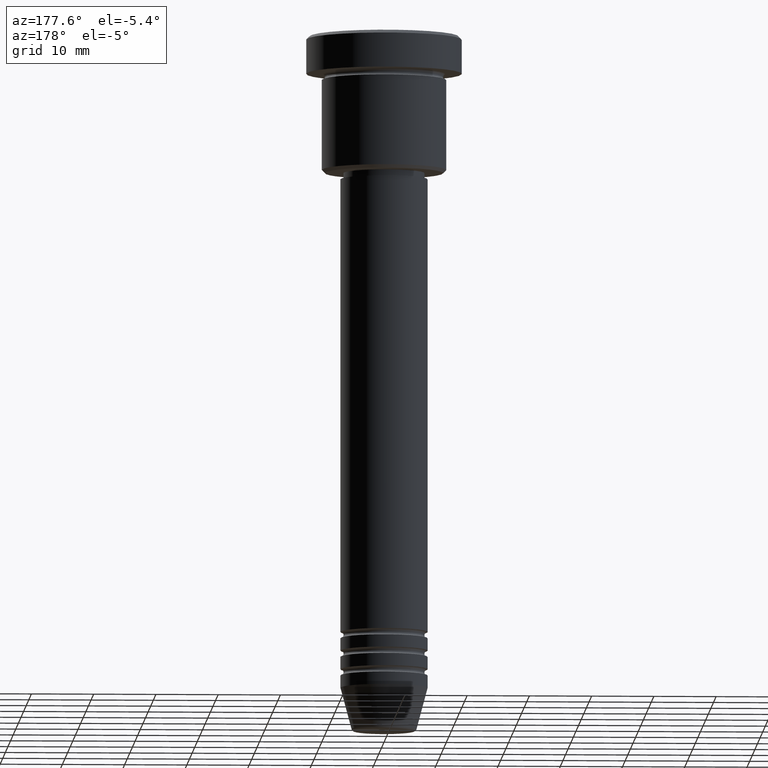
[diagram: clean part render]
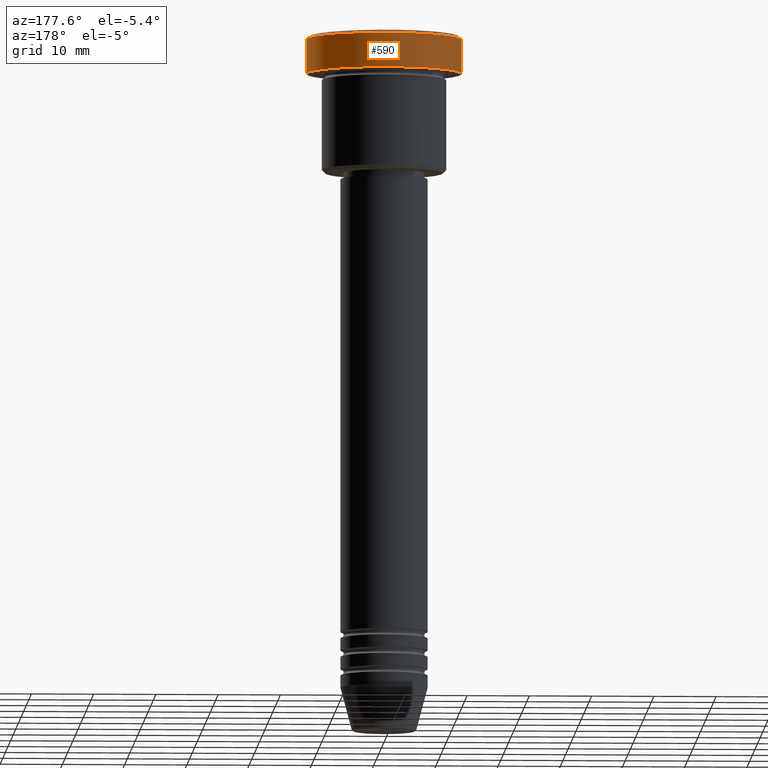
[diagram: same view with one face highlighted and labeled with its STEP entity id]
A machine part, auxiliary view. The second image highlights one B-rep face of the part: STEP entity #590.
In plain terms, the highlighted cylindrical surface (partial cylindrical patch) has radius 12.5 mm, axis along (-0, -0, 1).
Its self-contained STEP definition (entity closure, byte-faithful):
#49 = EDGE_CURVE ( 'NONE', #432, #602, #719, .T. ) ;
#50 = DIRECTION ( 'NONE',  ( 1.000000000000000000, 0.000000000000000000, 0.000000000000000000 ) ) ;
#68 = EDGE_LOOP ( 'NONE', ( #321, #965, #869, #272 ) ) ;
#97 = CARTESIAN_POINT ( 'NONE',  ( 12.50000000000000000, 0.000000000000000000, 0.000000000000000000 ) ) ;
#98 = VERTEX_POINT ( 'NONE', #113 ) ;
#113 = CARTESIAN_POINT ( 'NONE',  ( -12.50000000000000000, 1.530808498934191521E-15, -5.999999999999996447 ) ) ;
#163 = LINE ( 'NONE', #967, #314 ) ;
#177 = EDGE_CURVE ( 'NONE', #432, #98, #790, .T. ) ;
#204 = DIRECTION ( 'NONE',  ( 1.000000000000000000, 0.000000000000000000, 0.000000000000000000 ) ) ;
#272 = ORIENTED_EDGE ( 'NONE', *, *, #49, .F. ) ;
#275 = AXIS2_PLACEMENT_3D ( 'NONE', #912, #291, #204 ) ;
#280 = VERTEX_POINT ( 'NONE', #855 ) ;
#291 = DIRECTION ( 'NONE',  ( -0.000000000000000000, -0.000000000000000000, 1.000000000000000000 ) ) ;
#314 = VECTOR ( 'NONE', #339, 1000.000000000000000 ) ;
#316 = CYLINDRICAL_SURFACE ( 'NONE', #619, 12.50000000000000000 ) ;
#321 = ORIENTED_EDGE ( 'NONE', *, *, #177, .T. ) ;
#327 = DIRECTION ( 'NONE',  ( -0.000000000000000000, -0.000000000000000000, 1.000000000000000000 ) ) ;
#339 = DIRECTION ( 'NONE',  ( -0.000000000000000000, -0.000000000000000000, 1.000000000000000000 ) ) ;
#385 = CARTESIAN_POINT ( 'NONE',  ( 12.50000000000000000, 0.000000000000000000, -5.999999999999996447 ) ) ;
#403 = CARTESIAN_POINT ( 'NONE',  ( 12.50000000000000000, 0.000000000000000000, -0.5000000000000056621 ) ) ;
#432 = VERTEX_POINT ( 'NONE', #385 ) ;
#492 = CARTESIAN_POINT ( 'NONE',  ( 0.000000000000000000, 0.000000000000000000, 0.000000000000000000 ) ) ;
#509 = CIRCLE ( 'NONE', #1176, 12.50000000000000000 ) ;
#561 = VECTOR ( 'NONE', #1073, 1000.000000000000000 ) ;
#590 = ADVANCED_FACE ( 'NONE', ( #598 ), #316, .T. ) ;
#598 = FACE_OUTER_BOUND ( 'NONE', #68, .T. ) ;
#602 = VERTEX_POINT ( 'NONE', #403 ) ;
#619 = AXIS2_PLACEMENT_3D ( 'NONE', #492, #327, #50 ) ;
#703 = CARTESIAN_POINT ( 'NONE',  ( 0.000000000000000000, 0.000000000000000000, -0.5000000000000056621 ) ) ;
#706 = DIRECTION ( 'NONE',  ( 1.000000000000000000, 0.000000000000000000, 0.000000000000000000 ) ) ;
#719 = LINE ( 'NONE', #97, #561 ) ;
#790 = CIRCLE ( 'NONE', #275, 12.50000000000000000 ) ;
#855 = CARTESIAN_POINT ( 'NONE',  ( -12.50000000000000000, 1.530808498934191521E-15, -0.5000000000000056621 ) ) ;
#869 = ORIENTED_EDGE ( 'NONE', *, *, #949, .T. ) ;
#912 = CARTESIAN_POINT ( 'NONE',  ( 0.000000000000000000, 0.000000000000000000, -5.999999999999996447 ) ) ;
#949 = EDGE_CURVE ( 'NONE', #280, #602, #509, .T. ) ;
#965 = ORIENTED_EDGE ( 'NONE', *, *, #1011, .T. ) ;
#967 = CARTESIAN_POINT ( 'NONE',  ( -12.50000000000000000, 1.530808498934191521E-15, 0.000000000000000000 ) ) ;
#1011 = EDGE_CURVE ( 'NONE', #98, #280, #163, .T. ) ;
#1073 = DIRECTION ( 'NONE',  ( -0.000000000000000000, -0.000000000000000000, 1.000000000000000000 ) ) ;
#1150 = DIRECTION ( 'NONE',  ( 0.000000000000000000, 0.000000000000000000, -1.000000000000000000 ) ) ;
#1176 = AXIS2_PLACEMENT_3D ( 'NONE', #703, #1150, #706 ) ;